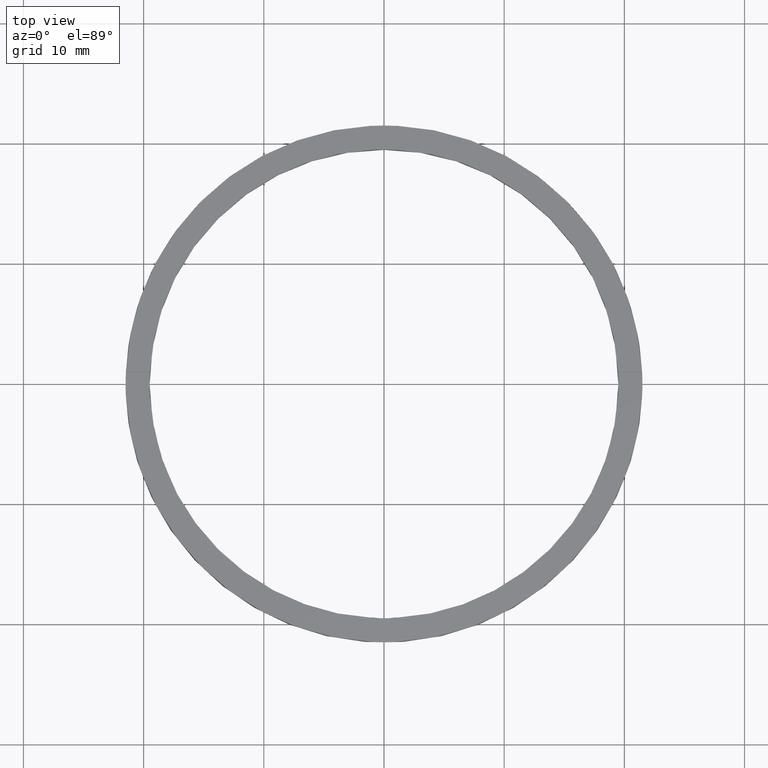
[diagram: clean part render]
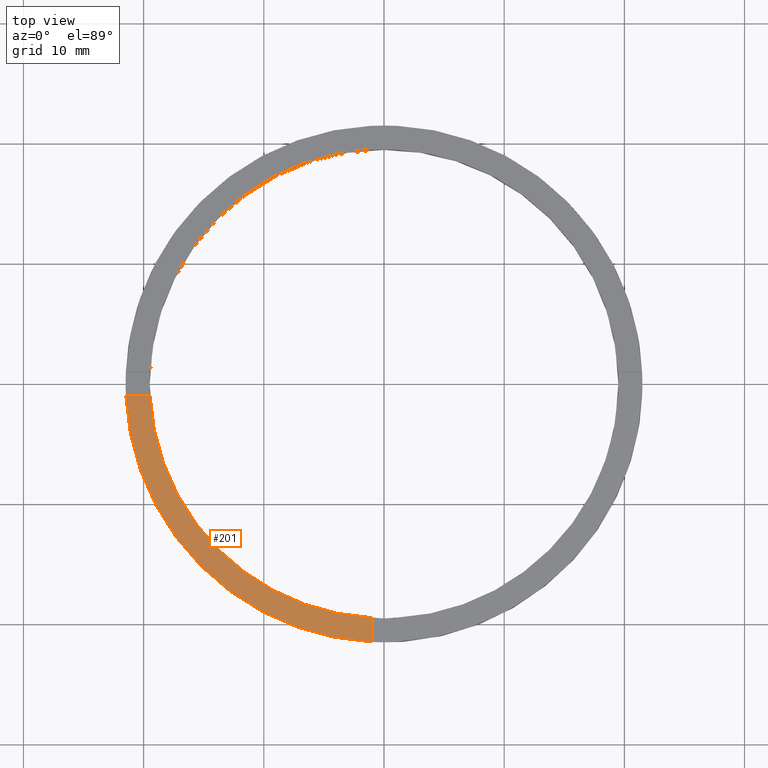
[diagram: same view with one face highlighted and labeled with its STEP entity id]
A machine part, top view. The second image highlights one B-rep face of the part: STEP entity #201.
In plain terms, the highlighted planar face has unit normal (0, 0, 1).
Its self-contained STEP definition (entity closure, byte-faithful):
#2 = EDGE_CURVE ( 'NONE', #97, #382, #440, .T. ) ;
#4 = CARTESIAN_POINT ( 'NONE',  ( -1.000000000000161426, -21.47673159491451855, 2.500000000000000000 ) ) ;
#51 = CARTESIAN_POINT ( 'NONE',  ( 0.000000000000000000, 0.000000000000000000, 2.500000000000000000 ) ) ;
#69 = EDGE_CURVE ( 'NONE', #382, #695, #430, .T. ) ;
#73 = CARTESIAN_POINT ( 'NONE',  ( -21.47673159491452566, -1.000000000000024869, 2.500000000000000000 ) ) ;
#80 = EDGE_LOOP ( 'NONE', ( #102, #614, #103, #659 ) ) ;
#96 = CARTESIAN_POINT ( 'NONE',  ( -1.000000000000162759, -11.50000000000017764, 2.500000000000000000 ) ) ;
#97 = VERTEX_POINT ( 'NONE', #73 ) ;
#102 = ORIENTED_EDGE ( 'NONE', *, *, #175, .F. ) ;
#103 = ORIENTED_EDGE ( 'NONE', *, *, #2, .F. ) ;
#126 = AXIS2_PLACEMENT_3D ( 'NONE', #51, #196, #523 ) ;
#132 = VECTOR ( 'NONE', #706, 1000.000000000000000 ) ;
#146 = VECTOR ( 'NONE', #182, 1000.000000000000000 ) ;
#175 = EDGE_CURVE ( 'NONE', #695, #644, #682, .T. ) ;
#182 = DIRECTION ( 'NONE',  ( 1.301042606982605321E-16, -1.000000000000000000, 0.000000000000000000 ) ) ;
#196 = DIRECTION ( 'NONE',  ( 0.000000000000000000, 0.000000000000000000, 1.000000000000000000 ) ) ;
#201 = ADVANCED_FACE ( 'NONE', ( #713 ), #247, .T. ) ;
#247 = PLANE ( 'NONE',  #760 ) ;
#254 = DIRECTION ( 'NONE',  ( 1.000000000000000000, 0.000000000000000000, -0.000000000000000000 ) ) ;
#264 = CARTESIAN_POINT ( 'NONE',  ( 0.000000000000000000, 0.000000000000000000, 2.500000000000000000 ) ) ;
#273 = AXIS2_PLACEMENT_3D ( 'NONE', #264, #318, #359 ) ;
#318 = DIRECTION ( 'NONE',  ( 0.000000000000000000, 0.000000000000000000, 1.000000000000000000 ) ) ;
#355 = DIRECTION ( 'NONE',  ( 0.000000000000000000, 0.000000000000000000, 1.000000000000000000 ) ) ;
#359 = DIRECTION ( 'NONE',  ( 1.000000000000000000, 0.000000000000000000, 0.000000000000000000 ) ) ;
#382 = VERTEX_POINT ( 'NONE', #582 ) ;
#386 = EDGE_CURVE ( 'NONE', #97, #644, #500, .T. ) ;
#430 = CIRCLE ( 'NONE', #126, 19.50000000000000000 ) ;
#440 = LINE ( 'NONE', #569, #132 ) ;
#466 = CARTESIAN_POINT ( 'NONE',  ( -1.000000000000161648, -19.47434209415043682, 2.500000000000000000 ) ) ;
#500 = CIRCLE ( 'NONE', #273, 21.50000000000000000 ) ;
#523 = DIRECTION ( 'NONE',  ( 1.000000000000000000, 0.000000000000000000, 0.000000000000000000 ) ) ;
#569 = CARTESIAN_POINT ( 'NONE',  ( -11.50000000000018296, -1.000000000000023315, 2.500000000000000000 ) ) ;
#582 = CARTESIAN_POINT ( 'NONE',  ( -19.47434209415044748, -1.000000000000024647, 2.500000000000000000 ) ) ;
#614 = ORIENTED_EDGE ( 'NONE', *, *, #69, .F. ) ;
#644 = VERTEX_POINT ( 'NONE', #4 ) ;
#659 = ORIENTED_EDGE ( 'NONE', *, *, #386, .T. ) ;
#682 = LINE ( 'NONE', #96, #146 ) ;
#695 = VERTEX_POINT ( 'NONE', #466 ) ;
#706 = DIRECTION ( 'NONE',  ( 1.000000000000000000, 1.734723475976807341E-16, -0.000000000000000000 ) ) ;
#713 = FACE_OUTER_BOUND ( 'NONE', #80, .T. ) ;
#749 = CARTESIAN_POINT ( 'NONE',  ( 0.000000000000000000, 0.000000000000000000, 2.500000000000000000 ) ) ;
#760 = AXIS2_PLACEMENT_3D ( 'NONE', #749, #355, #254 ) ;